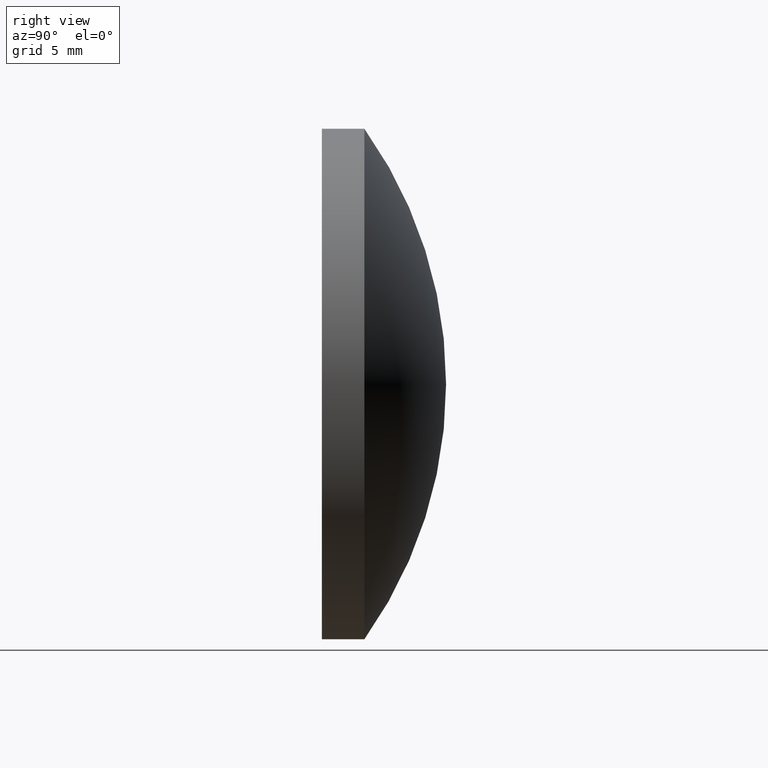
[diagram: clean part render]
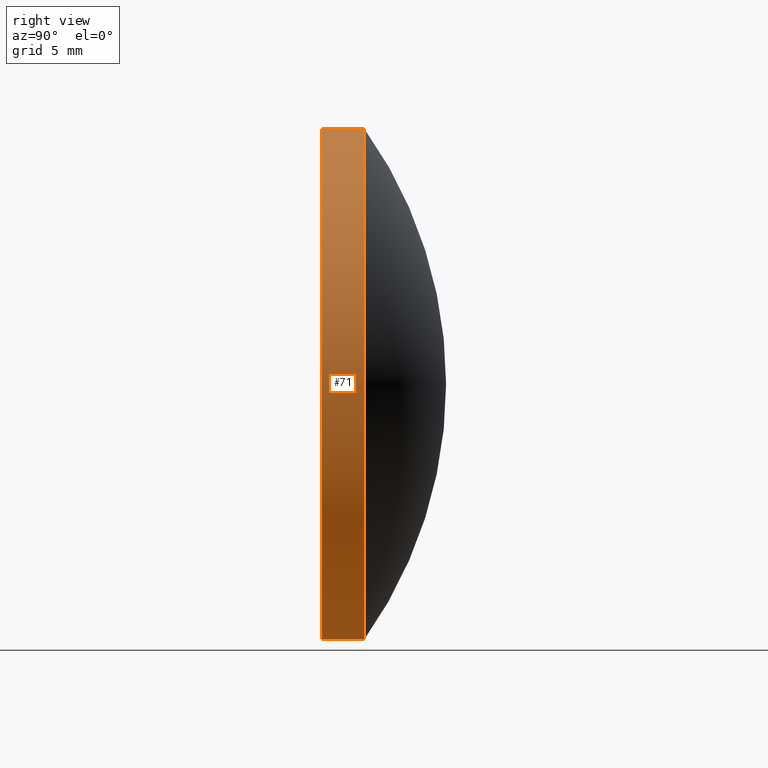
[diagram: same view with one face highlighted and labeled with its STEP entity id]
A machine part, right view. The second image highlights one B-rep face of the part: STEP entity #71.
In plain terms, the highlighted cylindrical surface (partial cylindrical patch) has radius 15 mm, axis along (-0, 1, -0).
Its self-contained STEP definition (entity closure, byte-faithful):
#4 = VERTEX_POINT ( 'NONE', #62 ) ;
#5 = CARTESIAN_POINT ( 'NONE',  ( 0.000000000000000000, 2.499999999999998224, 15.00000000000000178 ) ) ;
#10 = LINE ( 'NONE', #179, #184 ) ;
#19 = EDGE_CURVE ( 'NONE', #4, #167, #163, .T. ) ;
#24 = EDGE_CURVE ( 'NONE', #4, #48, #83, .T. ) ;
#42 = AXIS2_PLACEMENT_3D ( 'NONE', #79, #145, #99 ) ;
#45 = VERTEX_POINT ( 'NONE', #197 ) ;
#48 = VERTEX_POINT ( 'NONE', #75 ) ;
#61 = AXIS2_PLACEMENT_3D ( 'NONE', #141, #200, #127 ) ;
#62 = CARTESIAN_POINT ( 'NONE',  ( 0.000000000000000000, -1.734723475976807094E-15, 15.00000000000000000 ) ) ;
#63 = CARTESIAN_POINT ( 'NONE',  ( 0.000000000000000000, 7.299999999999999822, 15.00000000000000000 ) ) ;
#71 = ADVANCED_FACE ( 'NONE', ( #126 ), #93, .T. ) ;
#75 = CARTESIAN_POINT ( 'NONE',  ( 1.836970198721029589E-15, -1.734723475976807094E-15, -15.00000000000000000 ) ) ;
#79 = CARTESIAN_POINT ( 'NONE',  ( 0.000000000000000000, 2.499999999999997780, 0.000000000000000000 ) ) ;
#80 = ORIENTED_EDGE ( 'NONE', *, *, #132, .F. ) ;
#83 = CIRCLE ( 'NONE', #154, 15.00000000000000000 ) ;
#93 = CYLINDRICAL_SURFACE ( 'NONE', #61, 15.00000000000000000 ) ;
#99 = DIRECTION ( 'NONE',  ( 0.000000000000000000, 0.000000000000000000, 1.000000000000000000 ) ) ;
#107 = ORIENTED_EDGE ( 'NONE', *, *, #19, .F. ) ;
#110 = DIRECTION ( 'NONE',  ( -0.000000000000000000, 1.000000000000000000, -0.000000000000000000 ) ) ;
#113 = VECTOR ( 'NONE', #153, 1000.000000000000000 ) ;
#126 = FACE_OUTER_BOUND ( 'NONE', #175, .T. ) ;
#127 = DIRECTION ( 'NONE',  ( 0.000000000000000000, 0.000000000000000000, 1.000000000000000000 ) ) ;
#128 = CARTESIAN_POINT ( 'NONE',  ( 0.000000000000000000, -1.734723475976807094E-15, 0.000000000000000000 ) ) ;
#132 = EDGE_CURVE ( 'NONE', #167, #45, #138, .T. ) ;
#137 = DIRECTION ( 'NONE',  ( -0.000000000000000000, 1.000000000000000000, -0.000000000000000000 ) ) ;
#138 = CIRCLE ( 'NONE', #42, 15.00000000000000000 ) ;
#141 = CARTESIAN_POINT ( 'NONE',  ( 0.000000000000000000, 7.299999999999999822, 0.000000000000000000 ) ) ;
#145 = DIRECTION ( 'NONE',  ( -0.000000000000000000, 1.000000000000000000, -0.000000000000000000 ) ) ;
#153 = DIRECTION ( 'NONE',  ( -0.000000000000000000, 1.000000000000000000, -0.000000000000000000 ) ) ;
#154 = AXIS2_PLACEMENT_3D ( 'NONE', #128, #110, #180 ) ;
#156 = ORIENTED_EDGE ( 'NONE', *, *, #181, .T. ) ;
#162 = ORIENTED_EDGE ( 'NONE', *, *, #24, .T. ) ;
#163 = LINE ( 'NONE', #63, #113 ) ;
#167 = VERTEX_POINT ( 'NONE', #5 ) ;
#175 = EDGE_LOOP ( 'NONE', ( #162, #156, #80, #107 ) ) ;
#179 = CARTESIAN_POINT ( 'NONE',  ( 1.836970198721029589E-15, 7.299999999999999822, -15.00000000000000000 ) ) ;
#180 = DIRECTION ( 'NONE',  ( 0.000000000000000000, 0.000000000000000000, 1.000000000000000000 ) ) ;
#181 = EDGE_CURVE ( 'NONE', #48, #45, #10, .T. ) ;
#184 = VECTOR ( 'NONE', #137, 1000.000000000000000 ) ;
#197 = CARTESIAN_POINT ( 'NONE',  ( 1.836970198721029589E-15, 2.499999999999998224, -15.00000000000000178 ) ) ;
#200 = DIRECTION ( 'NONE',  ( -0.000000000000000000, 1.000000000000000000, -0.000000000000000000 ) ) ;